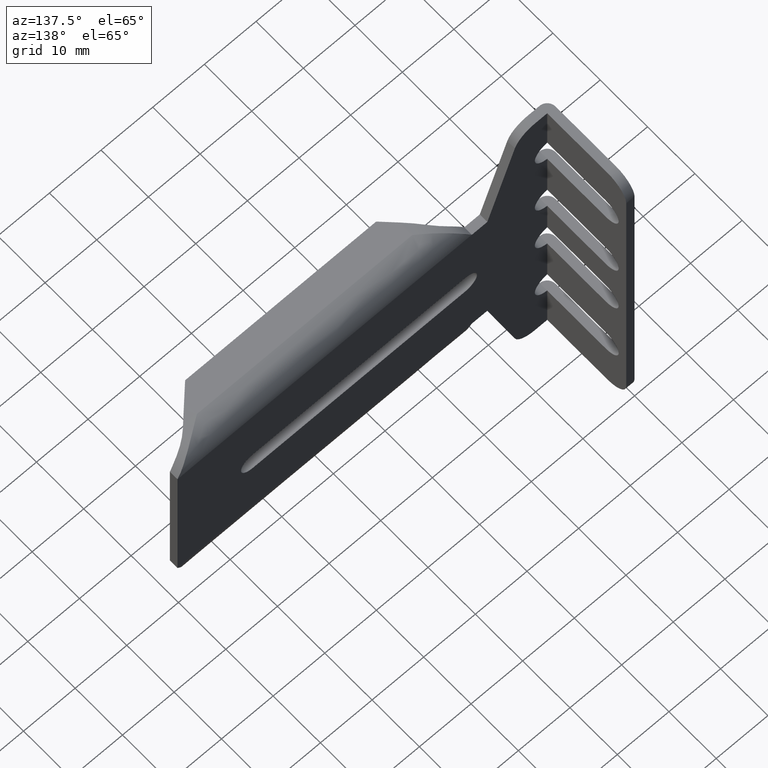
[diagram: clean part render]
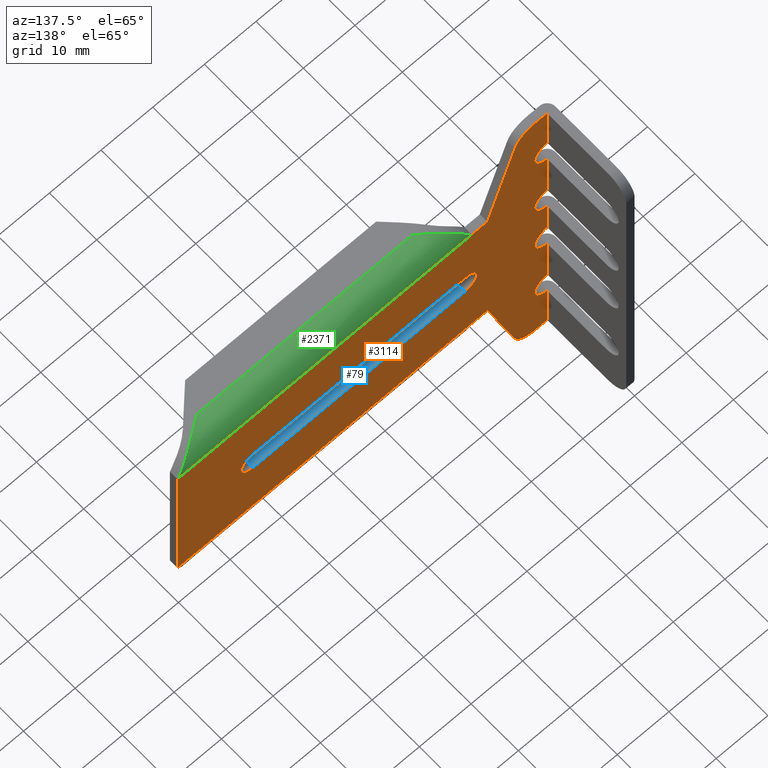
[diagram: same view with three faces highlighted in distinct colors, each labeled with its STEP entity id]
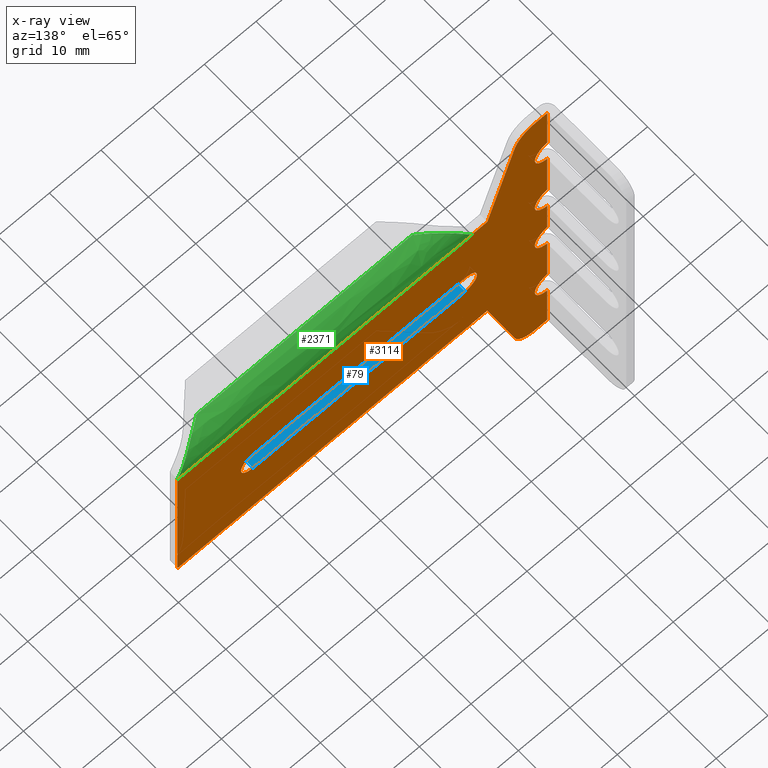
[diagram: x-ray of the same camera — body ghosted, the three highlighted faces saturated]
A machine part, auxiliary view with three faces highlighted in distinct colors.
The next image is the same camera in x-ray (body ghosted, the three faces saturated) — at least one of them is partly hidden behind the body in this view.
Their STEP definitions:

[orange] entity #3114 — the highlighted face is a freeform B-spline surface patch.
#58=CARTESIAN_POINT('',(58.600000000000001,-16.699999999999999,-2.300000000000000));
#59=VERTEX_POINT('',#58);
#65=CARTESIAN_POINT('',(17.500000000000000,-16.699999999999999,-2.300000000000000));
#66=VERTEX_POINT('',#65);
#67=CARTESIAN_POINT('',(17.500000000000000,-16.699999999999999,-2.300000000000000));
#68=CARTESIAN_POINT('',(58.600000000000001,-16.699999999999999,-2.300000000000000));
#69=QUASI_UNIFORM_CURVE('',1,(#67,#68),.UNSPECIFIED.,.F.,.U.);
#70=EDGE_CURVE('',#66,#59,#69,.T.);
#116=CARTESIAN_POINT('',(17.500000000000000,-16.699999999999999,2.300000000000000));
#117=VERTEX_POINT('',#116);
#118=CARTESIAN_POINT('',(17.500000000000000,-16.699999999999999,2.300000000000000));
#119=CARTESIAN_POINT('',(15.199999999999999,-16.699999999999996,2.300000000000000));
#120=CARTESIAN_POINT('',(15.199999999999999,-16.699999999999999,0.0));
#121=CARTESIAN_POINT('',(15.199999999999999,-16.699999999999996,-2.300000000000000));
#122=CARTESIAN_POINT('',(17.500000000000000,-16.699999999999999,-2.300000000000000));
#130=(BOUNDED_CURVE()B_SPLINE_CURVE(2,(#118,#119,#120,#121,#122),.UNSPECIFIED.,.F.,.U.)B_SPLINE_CURVE_WITH_KNOTS((3,2,3),(0.0,0.500000000000000,1.0),.UNSPECIFIED.)CURVE()GEOMETRIC_REPRESENTATION_ITEM()RATIONAL_B_SPLINE_CURVE((1.0,0.707106781186547,1.0,0.707106781186547,1.0))REPRESENTATION_ITEM(''));
#131=EDGE_CURVE('',#117,#66,#130,.T.);
#154=CARTESIAN_POINT('',(58.600000000000001,-16.699999999999999,2.300000000000000));
#155=VERTEX_POINT('',#154);
#156=CARTESIAN_POINT('',(58.600000000000001,-16.699999999999999,2.300000000000000));
#157=CARTESIAN_POINT('',(17.500000000000000,-16.699999999999999,2.300000000000000));
#158=QUASI_UNIFORM_CURVE('',1,(#156,#157),.UNSPECIFIED.,.F.,.U.);
#159=EDGE_CURVE('',#155,#117,#158,.T.);
#203=CARTESIAN_POINT('',(58.600000000000001,-16.699999999999999,-2.300000000000000));
#204=CARTESIAN_POINT('',(60.899999999999999,-16.699999999999996,-2.300000000000000));
#205=CARTESIAN_POINT('',(60.899999999999999,-16.699999999999999,0.0));
#206=CARTESIAN_POINT('',(60.899999999999999,-16.699999999999996,2.300000000000000));
#207=CARTESIAN_POINT('',(58.600000000000001,-16.699999999999999,2.300000000000000));
#215=(BOUNDED_CURVE()B_SPLINE_CURVE(2,(#203,#204,#205,#206,#207),.UNSPECIFIED.,.F.,.U.)B_SPLINE_CURVE_WITH_KNOTS((3,2,3),(0.0,0.500000000000000,1.0),.UNSPECIFIED.)CURVE()GEOMETRIC_REPRESENTATION_ITEM()RATIONAL_B_SPLINE_CURVE((1.0,0.707106781186547,1.0,0.707106781186547,1.0))REPRESENTATION_ITEM(''));
#216=EDGE_CURVE('',#59,#155,#215,.T.);
#259=CARTESIAN_POINT('',(1.600000000000000,-16.699999999999999,-19.522363660602849));
#260=VERTEX_POINT('',#259);
#266=CARTESIAN_POINT('',(1.600000000000000,-16.699999999999999,-24.977636339397151));
#267=VERTEX_POINT('',#266);
#268=CARTESIAN_POINT('',(1.600000000000001,-16.699999999999999,-24.977636339397161));
#269=CARTESIAN_POINT('',(3.999999999999900,-16.699999999999999,-24.669677397852244));
#270=CARTESIAN_POINT('',(3.999999999999900,-16.699999999999999,-22.250000000000000));
#271=CARTESIAN_POINT('',(3.999999999999900,-16.699999999999999,-19.830322602147753));
#272=CARTESIAN_POINT('',(1.600000000000002,-16.699999999999999,-19.522363660602839));
#280=(BOUNDED_CURVE()B_SPLINE_CURVE(2,(#268,#269,#270,#271,#272),.UNSPECIFIED.,.F.,.U.)B_SPLINE_CURVE_WITH_KNOTS((3,2,3),(0.0,0.500000000000000,1.0),.UNSPECIFIED.)CURVE()GEOMETRIC_REPRESENTATION_ITEM()RATIONAL_B_SPLINE_CURVE((1.0,0.750757193529561,1.0,0.750757193529561,1.0))REPRESENTATION_ITEM(''));
#281=EDGE_CURVE('',#267,#260,#280,.T.);
#327=CARTESIAN_POINT('',(1.600000000000000,-16.699999999999999,-19.500000000000000));
#328=VERTEX_POINT('',#327);
#366=CARTESIAN_POINT('',(1.600000000000000,-16.699999999999999,-25.0));
#367=VERTEX_POINT('',#366);
#485=CARTESIAN_POINT('',(1.600000000000000,-16.699999999999999,-3.622363660602835));
#486=VERTEX_POINT('',#485);
#492=CARTESIAN_POINT('',(1.600000000000000,-16.699999999999999,-9.077636339397149));
#493=VERTEX_POINT('',#492);
#494=CARTESIAN_POINT('',(1.600000000000001,-16.699999999999999,-9.077636339397158));
#495=CARTESIAN_POINT('',(3.999999999999900,-16.699999999999999,-8.769677397852240));
#496=CARTESIAN_POINT('',(3.999999999999900,-16.699999999999999,-6.350000000000000));
#497=CARTESIAN_POINT('',(3.999999999999900,-16.699999999999999,-3.930322602147758));
#498=CARTESIAN_POINT('',(1.599999999999999,-16.699999999999999,-3.622363660602841));
#506=(BOUNDED_CURVE()B_SPLINE_CURVE(2,(#494,#495,#496,#497,#498),.UNSPECIFIED.,.F.,.U.)B_SPLINE_CURVE_WITH_KNOTS((3,2,3),(0.0,0.500000000000000,1.0),.UNSPECIFIED.)CURVE()GEOMETRIC_REPRESENTATION_ITEM()RATIONAL_B_SPLINE_CURVE((1.0,0.750757193529561,1.0,0.750757193529561,1.0))REPRESENTATION_ITEM(''));
#507=EDGE_CURVE('',#493,#486,#506,.T.);
#553=CARTESIAN_POINT('',(1.600000000000000,-16.699999999999999,-3.600000000000000));
#554=VERTEX_POINT('',#553);
#592=CARTESIAN_POINT('',(1.600000000000000,-16.699999999999999,-9.100000000000000));
#593=VERTEX_POINT('',#592);
#711=CARTESIAN_POINT('',(1.600000000000000,-16.699999999999999,9.077636339397149));
#712=VERTEX_POINT('',#711);
#718=CARTESIAN_POINT('',(1.600000000000000,-16.699999999999999,3.622363660602835));
#719=VERTEX_POINT('',#718);
#720=CARTESIAN_POINT('',(1.599999999999998,-16.699999999999999,3.622363660602841));
#721=CARTESIAN_POINT('',(3.999999999999900,-16.700000000000006,3.930322602147759));
#722=CARTESIAN_POINT('',(3.999999999999900,-16.699999999999999,6.350000000000000));
#723=CARTESIAN_POINT('',(3.999999999999900,-16.700000000000006,8.769677397852240));
#724=CARTESIAN_POINT('',(1.600000000000002,-16.699999999999999,9.077636339397158));
#732=(BOUNDED_CURVE()B_SPLINE_CURVE(2,(#720,#721,#722,#723,#724),.UNSPECIFIED.,.F.,.U.)B_SPLINE_CURVE_WITH_KNOTS((3,2,3),(0.0,0.500000000000000,1.0),.UNSPECIFIED.)CURVE()GEOMETRIC_REPRESENTATION_ITEM()RATIONAL_B_SPLINE_CURVE((1.0,0.750757193529560,1.0,0.750757193529560,1.0))REPRESENTATION_ITEM(''));
#733=EDGE_CURVE('',#719,#712,#732,.T.);
#779=CARTESIAN_POINT('',(1.600000000000000,-16.699999999999999,9.100000000000000));
#780=VERTEX_POINT('',#779);
#818=CARTESIAN_POINT('',(1.600000000000000,-16.699999999999999,3.600000000000000));
#819=VERTEX_POINT('',#818);
#937=CARTESIAN_POINT('',(1.600000000000000,-16.699999999999999,24.977636339397151));
#938=VERTEX_POINT('',#937);
#944=CARTESIAN_POINT('',(1.600000000000000,-16.699999999999999,19.522363660602849));
#945=VERTEX_POINT('',#944);
#946=CARTESIAN_POINT('',(1.600000000000001,-16.699999999999999,19.522363660602839));
#947=CARTESIAN_POINT('',(3.999999999999900,-16.699999999999999,19.830322602147753));
#948=CARTESIAN_POINT('',(3.999999999999900,-16.699999999999999,22.250000000000000));
#949=CARTESIAN_POINT('',(3.999999999999900,-16.699999999999999,24.669677397852244));
#950=CARTESIAN_POINT('',(1.600000000000002,-16.699999999999999,24.977636339397161));
#958=(BOUNDED_CURVE()B_SPLINE_CURVE(2,(#946,#947,#948,#949,#950),.UNSPECIFIED.,.F.,.U.)B_SPLINE_CURVE_WITH_KNOTS((3,2,3),(0.0,0.500000000000000,1.0),.UNSPECIFIED.)CURVE()GEOMETRIC_REPRESENTATION_ITEM()RATIONAL_B_SPLINE_CURVE((1.0,0.750757193529561,1.0,0.750757193529561,1.0))REPRESENTATION_ITEM(''));
#959=EDGE_CURVE('',#945,#938,#958,.T.);
#1005=CARTESIAN_POINT('',(1.600000000000000,-16.699999999999999,25.0));
#1006=VERTEX_POINT('',#1005);
#1042=CARTESIAN_POINT('',(1.600000000000000,-16.699999999999999,19.500000000000000));
#1043=VERTEX_POINT('',#1042);
#1253=CARTESIAN_POINT('',(1.600000000000000,-16.699999999999999,-34.899999999999999));
#1254=VERTEX_POINT('',#1253);
#1255=CARTESIAN_POINT('',(1.600000000000000,-16.699999999999999,-34.899999999999999));
#1256=CARTESIAN_POINT('',(1.600000000000000,-16.699999999999999,-25.0));
#1257=QUASI_UNIFORM_CURVE('',1,(#1255,#1256),.UNSPECIFIED.,.F.,.U.);
#1258=EDGE_CURVE('',#1254,#367,#1257,.T.);
#1272=CARTESIAN_POINT('',(1.600000000000000,-16.699999999999999,34.899999999999999));
#1273=VERTEX_POINT('',#1272);
#1279=CARTESIAN_POINT('',(1.600000000000000,-16.699999999999999,25.0));
#1280=CARTESIAN_POINT('',(1.600000000000000,-16.699999999999999,34.899999999999999));
#1281=QUASI_UNIFORM_CURVE('',1,(#1279,#1280),.UNSPECIFIED.,.F.,.U.);
#1282=EDGE_CURVE('',#1006,#1273,#1281,.T.);
#1287=CARTESIAN_POINT('',(1.600000000000000,-16.699999999999999,9.100000000000000));
#1288=CARTESIAN_POINT('',(1.600000000000000,-16.699999999999999,19.500000000000000));
#1289=QUASI_UNIFORM_CURVE('',1,(#1287,#1288),.UNSPECIFIED.,.F.,.U.);
#1290=EDGE_CURVE('',#780,#1043,#1289,.T.);
#1295=CARTESIAN_POINT('',(1.600000000000000,-16.699999999999999,-3.600000000000000));
#1296=CARTESIAN_POINT('',(1.600000000000000,-16.699999999999999,3.600000000000000));
#1297=QUASI_UNIFORM_CURVE('',1,(#1295,#1296),.UNSPECIFIED.,.F.,.U.);
#1298=EDGE_CURVE('',#554,#819,#1297,.T.);
#1303=CARTESIAN_POINT('',(1.600000000000000,-16.699999999999999,-19.500000000000000));
#1304=CARTESIAN_POINT('',(1.600000000000000,-16.699999999999999,-9.100000000000000));
#1305=QUASI_UNIFORM_CURVE('',1,(#1303,#1304),.UNSPECIFIED.,.F.,.U.);
#1306=EDGE_CURVE('',#328,#593,#1305,.T.);
#1378=CARTESIAN_POINT('',(16.199999999999999,-16.699999999999999,15.0));
#1379=VERTEX_POINT('',#1378);
#1387=CARTESIAN_POINT('',(13.199999999999999,-16.699999999999999,15.0));
#1388=VERTEX_POINT('',#1387);
#1389=CARTESIAN_POINT('',(16.199999999999999,-16.699999999999999,15.0));
#1390=CARTESIAN_POINT('',(13.199999999999999,-16.699999999999999,15.0));
#1391=QUASI_UNIFORM_CURVE('',1,(#1389,#1390),.UNSPECIFIED.,.F.,.U.);
#1392=EDGE_CURVE('',#1379,#1388,#1391,.T.);
#1415=CARTESIAN_POINT('',(7.875532864427069,-16.699999999999999,32.089821435145403));
#1416=VERTEX_POINT('',#1415);
#1417=CARTESIAN_POINT('',(13.199999999999999,-16.699999999999999,15.0));
#1418=CARTESIAN_POINT('',(7.875532864427069,-16.699999999999999,32.089821435145403));
#1419=QUASI_UNIFORM_CURVE('',1,(#1417,#1418),.UNSPECIFIED.,.F.,.U.);
#1420=EDGE_CURVE('',#1388,#1416,#1419,.T.);
#1451=CARTESIAN_POINT('',(4.056589999999799,-16.699999999999999,34.899999999999999));
#1452=VERTEX_POINT('',#1451);
#1453=CARTESIAN_POINT('',(4.056589999999799,-16.699999999999999,34.899999999999999));
#1454=CARTESIAN_POINT('',(6.999999860558129,-16.699999999999996,34.899999999999999));
#1455=CARTESIAN_POINT('',(7.875532864427069,-16.699999999999999,32.089821435145403));
#1463=(BOUNDED_CURVE()B_SPLINE_CURVE(2,(#1453,#1454,#1455),.UNSPECIFIED.,.F.,.U.)CURVE()GEOMETRIC_REPRESENTATION_ITEM()QUASI_UNIFORM_CURVE()RATIONAL_B_SPLINE_CURVE((1.0,0.805436329589855,1.0))REPRESENTATION_ITEM(''));
#1464=EDGE_CURVE('',#1452,#1416,#1463,.T.);
#1509=CARTESIAN_POINT('',(1.600000000000000,-16.699999999999999,34.899999999999999));
#1510=CARTESIAN_POINT('',(4.056589999999799,-16.699999999999999,34.899999999999999));
#1511=QUASI_UNIFORM_CURVE('',1,(#1509,#1510),.UNSPECIFIED.,.F.,.U.);
#1512=EDGE_CURVE('',#1273,#1452,#1511,.T.);
#1577=CARTESIAN_POINT('',(4.056589999999799,-16.699999999999999,-34.899999999999999));
#1578=VERTEX_POINT('',#1577);
#1579=CARTESIAN_POINT('',(1.600000000000000,-16.699999999999999,-34.899999999999999));
#1580=CARTESIAN_POINT('',(4.056589999999799,-16.699999999999999,-34.899999999999999));
#1581=QUASI_UNIFORM_CURVE('',1,(#1579,#1580),.UNSPECIFIED.,.F.,.U.);
#1582=EDGE_CURVE('',#1254,#1578,#1581,.T.);
#1628=CARTESIAN_POINT('',(7.875533041854270,-16.699999999999999,-32.089821013040087));
#1629=VERTEX_POINT('',#1628);
#1630=CARTESIAN_POINT('',(7.875533041854219,-16.699999999999999,-32.089821013040073));
#1631=CARTESIAN_POINT('',(7.000000211842441,-16.699999999999996,-34.899999999999991));
#1632=CARTESIAN_POINT('',(4.056589999999799,-16.699999999999999,-34.899999999999999));
#1640=(BOUNDED_CURVE()B_SPLINE_CURVE(2,(#1630,#1631,#1632),.UNSPECIFIED.,.F.,.U.)CURVE()GEOMETRIC_REPRESENTATION_ITEM()QUASI_UNIFORM_CURVE()RATIONAL_B_SPLINE_CURVE((1.0,0.805436295823580,1.0))REPRESENTATION_ITEM(''));
#1641=EDGE_CURVE('',#1629,#1578,#1640,.T.);
#1673=CARTESIAN_POINT('',(13.199999999999999,-16.699999999999999,-15.0));
#1674=VERTEX_POINT('',#1673);
#1675=CARTESIAN_POINT('',(7.875533041854270,-16.699999999999999,-32.089821013040087));
#1676=CARTESIAN_POINT('',(13.199999999999999,-16.699999999999999,-15.0));
#1677=QUASI_UNIFORM_CURVE('',1,(#1675,#1676),.UNSPECIFIED.,.F.,.U.);
#1678=EDGE_CURVE('',#1629,#1674,#1677,.T.);
#1701=CARTESIAN_POINT('',(16.199999999999999,-16.699999999999999,-15.0));
#1702=VERTEX_POINT('',#1701);
#1703=CARTESIAN_POINT('',(13.199999999999999,-16.699999999999999,-15.0));
#1704=CARTESIAN_POINT('',(16.199999999999999,-16.699999999999999,-15.0));
#1705=QUASI_UNIFORM_CURVE('',1,(#1703,#1704),.UNSPECIFIED.,.F.,.U.);
#1706=EDGE_CURVE('',#1674,#1702,#1705,.T.);
#2275=CARTESIAN_POINT('',(73.200000000000003,-16.699999999999999,15.000000685119350));
#2276=VERTEX_POINT('',#2275);
#2277=CARTESIAN_POINT('',(16.199999999999999,-16.699999999999999,15.0));
#2278=CARTESIAN_POINT('',(73.200000000000003,-16.699999999999999,15.000000685119350));
#2279=QUASI_UNIFORM_CURVE('',1,(#2277,#2278),.UNSPECIFIED.,.F.,.U.);
#2280=EDGE_CURVE('',#1379,#2276,#2279,.T.);
#2434=CARTESIAN_POINT('',(73.200000000000003,-16.699999999999999,-15.000000685119350));
#2435=VERTEX_POINT('',#2434);
#2436=CARTESIAN_POINT('',(16.199999999999999,-16.699999999999999,-15.0));
#2437=CARTESIAN_POINT('',(73.200000000000003,-16.699999999999999,-15.000000685119350));
#2438=QUASI_UNIFORM_CURVE('',1,(#2436,#2437),.UNSPECIFIED.,.F.,.U.);
#2439=EDGE_CURVE('',#1702,#2435,#2438,.T.);
#2502=CARTESIAN_POINT('',(73.200000000000003,-16.699999999999999,-15.000000685119350));
#2503=CARTESIAN_POINT('',(73.200000000000003,-16.699999999999999,15.000000685119350));
#2504=QUASI_UNIFORM_CURVE('',1,(#2502,#2503),.UNSPECIFIED.,.F.,.U.);
#2505=EDGE_CURVE('',#2435,#2276,#2504,.T.);
#2843=CARTESIAN_POINT('',(1.600000000000000,-16.699999999999999,24.977636339397151));
#2844=CARTESIAN_POINT('',(1.600000000000000,-16.699999999999999,25.0));
#2845=QUASI_UNIFORM_CURVE('',1,(#2843,#2844),.UNSPECIFIED.,.F.,.U.);
#2846=EDGE_CURVE('',#938,#1006,#2845,.T.);
#2869=CARTESIAN_POINT('',(1.600000000000000,-16.699999999999999,19.500000000000000));
#2870=CARTESIAN_POINT('',(1.600000000000000,-16.699999999999999,19.522363660602849));
#2871=QUASI_UNIFORM_CURVE('',1,(#2869,#2870),.UNSPECIFIED.,.F.,.U.);
#2872=EDGE_CURVE('',#1043,#945,#2871,.T.);
#2908=CARTESIAN_POINT('',(1.600000000000000,-16.699999999999999,9.077636339397149));
#2909=CARTESIAN_POINT('',(1.600000000000000,-16.699999999999999,9.100000000000000));
#2910=QUASI_UNIFORM_CURVE('',1,(#2908,#2909),.UNSPECIFIED.,.F.,.U.);
#2911=EDGE_CURVE('',#712,#780,#2910,.T.);
#2934=CARTESIAN_POINT('',(1.600000000000000,-16.699999999999999,3.600000000000000));
#2935=CARTESIAN_POINT('',(1.600000000000000,-16.699999999999999,3.622363660602835));
#2936=QUASI_UNIFORM_CURVE('',1,(#2934,#2935),.UNSPECIFIED.,.F.,.U.);
#2937=EDGE_CURVE('',#819,#719,#2936,.T.);
#2973=CARTESIAN_POINT('',(1.600000000000000,-16.699999999999999,-3.622363660602835));
#2974=CARTESIAN_POINT('',(1.600000000000000,-16.699999999999999,-3.600000000000000));
#2975=QUASI_UNIFORM_CURVE('',1,(#2973,#2974),.UNSPECIFIED.,.F.,.U.);
#2976=EDGE_CURVE('',#486,#554,#2975,.T.);
#2999=CARTESIAN_POINT('',(1.600000000000000,-16.699999999999999,-9.100000000000000));
#3000=CARTESIAN_POINT('',(1.600000000000000,-16.699999999999999,-9.077636339397149));
#3001=QUASI_UNIFORM_CURVE('',1,(#2999,#3000),.UNSPECIFIED.,.F.,.U.);
#3002=EDGE_CURVE('',#593,#493,#3001,.T.);
#3038=CARTESIAN_POINT('',(1.600000000000000,-16.699999999999999,-19.522363660602849));
#3039=CARTESIAN_POINT('',(1.600000000000000,-16.699999999999999,-19.500000000000000));
#3040=QUASI_UNIFORM_CURVE('',1,(#3038,#3039),.UNSPECIFIED.,.F.,.U.);
#3041=EDGE_CURVE('',#260,#328,#3040,.T.);
#3064=CARTESIAN_POINT('',(1.600000000000000,-16.699999999999999,-25.0));
#3065=CARTESIAN_POINT('',(1.600000000000000,-16.699999999999999,-24.977636339397151));
#3066=QUASI_UNIFORM_CURVE('',1,(#3064,#3065),.UNSPECIFIED.,.F.,.U.);
#3067=EDGE_CURVE('',#367,#267,#3066,.T.);
#3073=CARTESIAN_POINT('',(-1.976419605419811,-16.699999999999999,-38.386511830411422));
#3074=CARTESIAN_POINT('',(-1.976419605419811,-16.699999999999999,38.386511830411422));
#3075=CARTESIAN_POINT('',(76.776416404650405,-16.699999999999999,-38.386511830411422));
#3076=CARTESIAN_POINT('',(76.776416404650405,-16.699999999999999,38.386511830411422));
#3077=B_SPLINE_SURFACE_WITH_KNOTS('',1,1,((#3073,#3075),(#3074,#3076)),.UNSPECIFIED.,.F.,.F.,.U.,(2,2),(2,2),(0.0,76.773023660822844),(0.0,78.752836010070212),.UNSPECIFIED.);
#3078=ORIENTED_EDGE('',*,*,#3067,.T.);
#3079=ORIENTED_EDGE('',*,*,#281,.T.);
#3080=ORIENTED_EDGE('',*,*,#3041,.T.);
#3081=ORIENTED_EDGE('',*,*,#1306,.T.);
#3082=ORIENTED_EDGE('',*,*,#3002,.T.);
#3083=ORIENTED_EDGE('',*,*,#507,.T.);
#3084=ORIENTED_EDGE('',*,*,#2976,.T.);
#3085=ORIENTED_EDGE('',*,*,#1298,.T.);
#3086=ORIENTED_EDGE('',*,*,#2937,.T.);
#3087=ORIENTED_EDGE('',*,*,#733,.T.);
#3088=ORIENTED_EDGE('',*,*,#2911,.T.);
#3089=ORIENTED_EDGE('',*,*,#1290,.T.);
#3090=ORIENTED_EDGE('',*,*,#2872,.T.);
#3091=ORIENTED_EDGE('',*,*,#959,.T.);
#3092=ORIENTED_EDGE('',*,*,#2846,.T.);
#3093=ORIENTED_EDGE('',*,*,#1282,.T.);
#3094=ORIENTED_EDGE('',*,*,#1512,.T.);
#3095=ORIENTED_EDGE('',*,*,#1464,.T.);
#3096=ORIENTED_EDGE('',*,*,#1420,.F.);
#3097=ORIENTED_EDGE('',*,*,#1392,.F.);
#3098=ORIENTED_EDGE('',*,*,#2280,.T.);
#3099=ORIENTED_EDGE('',*,*,#2505,.F.);
#3100=ORIENTED_EDGE('',*,*,#2439,.F.);
#3101=ORIENTED_EDGE('',*,*,#1706,.F.);
#3102=ORIENTED_EDGE('',*,*,#1678,.F.);
#3103=ORIENTED_EDGE('',*,*,#1641,.T.);
#3104=ORIENTED_EDGE('',*,*,#1582,.F.);
#3105=ORIENTED_EDGE('',*,*,#1258,.T.);
#3106=EDGE_LOOP('',(#3078,#3079,#3080,#3081,#3082,#3083,#3084,#3085,#3086,#3087,#3088,#3089,#3090,#3091,#3092,#3093,#3094,#3095,#3096,#3097,#3098,#3099,#3100,#3101,#3102,#3103,#3104,#3105));
#3107=FACE_OUTER_BOUND('',#3106,.T.);
#3108=ORIENTED_EDGE('',*,*,#216,.T.);
#3109=ORIENTED_EDGE('',*,*,#159,.T.);
#3110=ORIENTED_EDGE('',*,*,#131,.T.);
#3111=ORIENTED_EDGE('',*,*,#70,.T.);
#3112=EDGE_LOOP('',(#3108,#3109,#3110,#3111));
#3113=FACE_BOUND('',#3112,.T.);
#3114=ADVANCED_FACE('',(#3107,#3113),#3077,.T.);

[blue] entity #79 — the highlighted face is a freeform B-spline surface patch.
#44=CARTESIAN_POINT('',(60.652943377070663,-18.379919160842899,-2.300000000000000));
#45=CARTESIAN_POINT('',(15.447054050690900,-18.379919160842899,-2.300000000000000));
#46=CARTESIAN_POINT('',(60.652943377070663,-16.620080839157101,-2.300000000000000));
#47=CARTESIAN_POINT('',(15.447054050690900,-16.620080839157101,-2.300000000000000));
#48=B_SPLINE_SURFACE_WITH_KNOTS('',1,1,((#44,#46),(#45,#47)),.UNSPECIFIED.,.F.,.F.,.U.,(2,2),(2,2),(0.0,45.205889326379747),(0.041708770394325,0.958291229605675),.UNSPECIFIED.);
#49=CARTESIAN_POINT('',(17.500000000000000,-18.300000000000001,-2.300000000000000));
#50=VERTEX_POINT('',#49);
#51=CARTESIAN_POINT('',(58.600000000000001,-18.300000000000001,-2.300000000000000));
#52=VERTEX_POINT('',#51);
#53=CARTESIAN_POINT('',(17.500000000000000,-18.300000000000001,-2.300000000000000));
#54=CARTESIAN_POINT('',(58.600000000000001,-18.300000000000001,-2.300000000000000));
#55=QUASI_UNIFORM_CURVE('',1,(#53,#54),.UNSPECIFIED.,.F.,.U.);
#56=EDGE_CURVE('',#50,#52,#55,.T.);
#57=ORIENTED_EDGE('',*,*,#56,.T.);
#58=CARTESIAN_POINT('',(58.600000000000001,-16.699999999999999,-2.300000000000000));
#59=VERTEX_POINT('',#58);
#60=CARTESIAN_POINT('',(58.600000000000001,-16.699999999999999,-2.300000000000000));
#61=CARTESIAN_POINT('',(58.600000000000001,-18.300000000000001,-2.300000000000000));
#62=QUASI_UNIFORM_CURVE('',1,(#60,#61),.UNSPECIFIED.,.F.,.U.);
#63=EDGE_CURVE('',#59,#52,#62,.T.);
#64=ORIENTED_EDGE('',*,*,#63,.F.);
#65=CARTESIAN_POINT('',(17.500000000000000,-16.699999999999999,-2.300000000000000));
#66=VERTEX_POINT('',#65);
#67=CARTESIAN_POINT('',(17.500000000000000,-16.699999999999999,-2.300000000000000));
#68=CARTESIAN_POINT('',(58.600000000000001,-16.699999999999999,-2.300000000000000));
#69=QUASI_UNIFORM_CURVE('',1,(#67,#68),.UNSPECIFIED.,.F.,.U.);
#70=EDGE_CURVE('',#66,#59,#69,.T.);
#71=ORIENTED_EDGE('',*,*,#70,.F.);
#72=CARTESIAN_POINT('',(17.500000000000000,-16.699999999999999,-2.300000000000000));
#73=CARTESIAN_POINT('',(17.500000000000000,-18.300000000000001,-2.300000000000000));
#74=QUASI_UNIFORM_CURVE('',1,(#72,#73),.UNSPECIFIED.,.F.,.U.);
#75=EDGE_CURVE('',#66,#50,#74,.T.);
#76=ORIENTED_EDGE('',*,*,#75,.T.);
#77=EDGE_LOOP('',(#57,#64,#71,#76));
#78=FACE_OUTER_BOUND('',#77,.T.);
#79=ADVANCED_FACE('',(#78),#48,.F.);

[green] entity #2371 — the highlighted face is a freeform B-spline surface patch.
#1378=CARTESIAN_POINT('',(16.199999999999999,-16.699999999999999,15.0));
#1379=VERTEX_POINT('',#1378);
#2261=CARTESIAN_POINT('',(14.775000000000000,-21.061255128046469,19.248543590594231));
#2262=CARTESIAN_POINT('',(74.660625000000010,-21.061255128046469,19.248543590594231));
#2263=CARTESIAN_POINT('',(14.774999999999999,-16.381316180954890,19.371093789771248));
#2264=CARTESIAN_POINT('',(74.660625000000010,-16.381316180954890,19.371093789771248));
#2265=CARTESIAN_POINT('',(14.775000000000000,-16.710520850926049,14.701139680243807));
#2266=CARTESIAN_POINT('',(74.660625000000010,-16.710520850926049,14.701139680243807));
#2274=(BOUNDED_SURFACE()B_SPLINE_SURFACE(1,2,((#2261,#2263,#2265),(#2262,#2264,#2266)),.UNSPECIFIED.,.F.,.F.,.U.)B_SPLINE_SURFACE_WITH_KNOTS((2,2),(3,3),(0.0,59.885625000000019),(0.0,7.527357535161365),.UNSPECIFIED.)GEOMETRIC_REPRESENTATION_ITEM()RATIONAL_B_SPLINE_SURFACE(((1.0,0.670944229065258,0.996392636917718),(1.0,0.670944229065258,0.996392636917718)))REPRESENTATION_ITEM('')SURFACE());
#2275=CARTESIAN_POINT('',(73.200000000000003,-16.699999999999999,15.000000685119350));
#2276=VERTEX_POINT('',#2275);
#2277=CARTESIAN_POINT('',(16.199999999999999,-16.699999999999999,15.0));
#2278=CARTESIAN_POINT('',(73.200000000000003,-16.699999999999999,15.000000685119350));
#2279=QUASI_UNIFORM_CURVE('',1,(#2277,#2278),.UNSPECIFIED.,.F.,.U.);
#2280=EDGE_CURVE('',#1379,#2276,#2279,.T.);
#2281=ORIENTED_EDGE('',*,*,#2280,.F.);
#2282=CARTESIAN_POINT('',(23.844441999999901,-20.950001529117198,19.250000000000000));
#2283=VERTEX_POINT('',#2282);
#2284=CARTESIAN_POINT('',(16.199999999999999,-16.699999999999999,15.0));
#2285=CARTESIAN_POINT('',(16.314046095702501,-16.700000074231909,15.183541477547180));
#2286=CARTESIAN_POINT('',(16.433191768976361,-16.711812834867210,15.360581017954390));
#2287=CARTESIAN_POINT('',(16.681254664601799,-16.754970750047800,15.702835551625220));
#2288=CARTESIAN_POINT('',(16.810173295773989,-16.786339052672009,15.868044982096579));
#2289=CARTESIAN_POINT('',(17.077545465149761,-16.865920734328629,16.187379633369069));
#2290=CARTESIAN_POINT('',(17.215999633282291,-16.914146207031120,16.341501873144619));
#2291=CARTESIAN_POINT('',(17.430772700854511,-16.997721654580179,16.564705610006950));
#2292=CARTESIAN_POINT('',(17.503703667199758,-17.027525978606629,16.637925689630599));
#2293=CARTESIAN_POINT('',(17.651192577386411,-17.090392317499109,16.781019737420898));
#2294=CARTESIAN_POINT('',(17.725524774092339,-17.123351122264371,16.850687354252312));
#2295=CARTESIAN_POINT('',(18.100083369496470,-17.295098127654288,17.190164910267821));
#2296=CARTESIAN_POINT('',(18.408966587036840,-17.454441032687459,17.433658603211690));
#2297=CARTESIAN_POINT('',(18.885807838151159,-17.717880646602818,17.763273801882249));
#2298=CARTESIAN_POINT('',(19.047014801398952,-17.809824773404390,17.867155564383491));
#2299=CARTESIAN_POINT('',(19.292234580592599,-17.953276093753189,18.014438116513290));
#2300=CARTESIAN_POINT('',(19.374543146231009,-18.002017796104511,18.062106912270799));
#2301=CARTESIAN_POINT('',(19.540305856256790,-18.101261874225600,18.154645610512709));
#2302=CARTESIAN_POINT('',(19.623719267338121,-18.151741945999920,18.199485721411278));
#2303=CARTESIAN_POINT('',(20.040821629815952,-18.406580993344960,18.415393439047691));
#2304=CARTESIAN_POINT('',(20.376892447064058,-18.619508104564911,18.563050210122459));
#2305=CARTESIAN_POINT('',(21.054858951818868,-19.058735827679861,18.814398993238431));
#2306=CARTESIAN_POINT('',(21.396745637987600,-19.285076377919989,18.918039496999569));
#2307=CARTESIAN_POINT('',(21.914720986933069,-19.632435062990609,19.042480216768421));
#2308=CARTESIAN_POINT('',(22.088237855879392,-19.749539165430981,19.078768325781429));
#2309=CARTESIAN_POINT('',(22.437139905079071,-19.986101480192151,19.141057527638580));
#2310=CARTESIAN_POINT('',(22.612834367591280,-20.105772107992632,19.167087744266720));
#2311=CARTESIAN_POINT('',(22.964289812514760,-20.345875116088990,19.208607220211409));
#2312=CARTESIAN_POINT('',(23.140102780432681,-20.466341028024349,19.224128487746619));
#2313=CARTESIAN_POINT('',(23.404071878668439,-20.647473591155968,19.239652002104279));
#2314=CARTESIAN_POINT('',(23.536118804580191,-20.738148528444519,19.245472401409231));
#2315=CARTESIAN_POINT('',(23.690309427208149,-20.844086761345011,19.248868956194311));
#2316=CARTESIAN_POINT('',(23.756423139915459,-20.889517023610139,19.249596576490038));
#2317=CARTESIAN_POINT('',(23.800506388197689,-20.919809661527260,19.249919750826511));
#2318=CARTESIAN_POINT('',(23.822615558610138,-20.935002745421219,19.249999999999989));
#2319=CARTESIAN_POINT('',(23.844441999999901,-20.950001529117198,19.250000000000000));
#2320=B_SPLINE_CURVE_WITH_KNOTS('',3,(#2284,#2285,#2286,#2287,#2288,#2289,#2290,#2291,#2292,#2293,#2294,#2295,#2296,#2297,#2298,#2299,#2300,#2301,#2302,#2303,#2304,#2305,#2306,#2307,#2308,#2309,#2310,#2311,#2312,#2313,#2314,#2315,#2316,#2317,#2318,#2319),.UNSPECIFIED.,.F.,.U.,(4,2,2,2,2,2,2,2,2,2,2,2,2,2,2,1,1,2,4),(0.000000018996767,0.062500000000001,0.125000000000002,0.187500000000002,0.218750000000002,0.250000000000003,0.375000000000003,0.437500000000002,0.468750000000002,0.500000000000002,0.625000000000000,0.749999999999999,0.812499999999999,0.874999999999999,0.937499999999999,0.968749999999999,0.984374999999999,0.992187500000000,1.0),.UNSPECIFIED.);
#2321=EDGE_CURVE('',#1379,#2283,#2320,.T.);
#2322=ORIENTED_EDGE('',*,*,#2321,.T.);
#2323=CARTESIAN_POINT('',(65.555557999999905,-20.950001529117198,19.250000000000000));
#2324=VERTEX_POINT('',#2323);
#2325=CARTESIAN_POINT('',(23.844441999999901,-20.950001529117198,19.250000000000000));
#2326=CARTESIAN_POINT('',(65.555557999999905,-20.950001529117198,19.250000000000000));
#2327=QUASI_UNIFORM_CURVE('',1,(#2325,#2326),.UNSPECIFIED.,.F.,.U.);
#2328=EDGE_CURVE('',#2283,#2324,#2327,.T.);
#2329=ORIENTED_EDGE('',*,*,#2328,.T.);
#2330=CARTESIAN_POINT('',(65.555557999999905,-20.950001529117198,19.250000000000000));
#2331=CARTESIAN_POINT('',(65.577384440314091,-20.935002746161310,19.250000000000000));
#2332=CARTESIAN_POINT('',(65.599493609534591,-20.919809663085619,19.249919750834749));
#2333=CARTESIAN_POINT('',(65.643576855508158,-20.889517026754820,19.249596576531960));
#2334=CARTESIAN_POINT('',(65.709690564764898,-20.844086766860510,19.248868956312130));
#2335=CARTESIAN_POINT('',(65.863881179428006,-20.738148539430249,19.245472401879670));
#2336=CARTESIAN_POINT('',(65.995928098658879,-20.647473606722588,19.239652003171638));
#2337=CARTESIAN_POINT('',(66.259897183722728,-20.466341052602338,19.224128490386470));
#2338=CARTESIAN_POINT('',(66.435710143112303,-20.345875146474320,19.208607224403650));
#2339=CARTESIAN_POINT('',(66.787165571465778,-20.105772149555388,19.167087752515979));
#2340=CARTESIAN_POINT('',(66.962860022198186,-19.986101529674659,19.141057538912229));
#2341=CARTESIAN_POINT('',(67.311762048569420,-19.749539230041140,19.078768344549509));
#2342=CARTESIAN_POINT('',(67.485278906698056,-19.632435134657200,19.042480239889350));
#2343=CARTESIAN_POINT('',(68.003254224916674,-19.285076469187668,18.918039534803089));
#2344=CARTESIAN_POINT('',(68.345140892892843,-19.058735929933970,18.814399042985940));
#2345=CARTESIAN_POINT('',(69.023107365756502,-18.619508224181839,18.563050287341010));
#2346=CARTESIAN_POINT('',(69.359178169304400,-18.406581119346150,18.415393531796919));
#2347=CARTESIAN_POINT('',(69.776280517616343,-18.151742076569970,18.199485835535089));
#2348=CARTESIAN_POINT('',(69.859693926279135,-18.101262005384861,18.154645728840780));
#2349=CARTESIAN_POINT('',(70.025456626914433,-18.002017930963770,18.062107041987829));
#2350=CARTESIAN_POINT('',(70.107765188081657,-17.953276230214708,18.014438252054639));
#2351=CARTESIAN_POINT('',(70.352984954528580,-17.809824913908059,17.867155717769069));
#2352=CARTESIAN_POINT('',(70.514191910166431,-17.717880788784019,17.763273967658169));
#2353=CARTESIAN_POINT('',(70.991033141111345,-17.454441176607251,17.433658807525770));
#2354=CARTESIAN_POINT('',(71.299916348731003,-17.295098268406129,17.190165142082432));
#2355=CARTESIAN_POINT('',(71.674474936418790,-17.123351252116571,16.850687622519320));
#2356=CARTESIAN_POINT('',(71.748807131817344,-17.090392444819209,16.781020013083388));
#2357=CARTESIAN_POINT('',(71.896296039875722,-17.027526100094171,16.637925980294821));
#2358=CARTESIAN_POINT('',(71.969227003648413,-16.997721773493840,16.564705910014322));
#2359=CARTESIAN_POINT('',(72.184000066514855,-16.914146315998430,16.341502199309168));
#2360=CARTESIAN_POINT('',(72.322454233075646,-16.865920834751211,16.187379976845492));
#2361=CARTESIAN_POINT('',(72.589826402327972,-16.786339131928770,15.868045359613090));
#2362=CARTESIAN_POINT('',(72.718745034948526,-16.754970816686029,15.702835945871451));
#2363=CARTESIAN_POINT('',(72.966807974135648,-16.711812865194400,15.360581392671181));
#2364=CARTESIAN_POINT('',(73.085953555920099,-16.700000095625018,15.183542011714611));
#2365=CARTESIAN_POINT('',(73.200000000000003,-16.699999999999999,15.000000685119350));
#2366=B_SPLINE_CURVE_WITH_KNOTS('',3,(#2330,#2331,#2332,#2333,#2334,#2335,#2336,#2337,#2338,#2339,#2340,#2341,#2342,#2343,#2344,#2345,#2346,#2347,#2348,#2349,#2350,#2351,#2352,#2353,#2354,#2355,#2356,#2357,#2358,#2359,#2360,#2361,#2362,#2363,#2364,#2365),.UNSPECIFIED.,.F.,.U.,(4,2,1,1,2,2,2,2,2,2,2,2,2,2,2,2,2,2,4),(0.0,0.007812499999997,0.015624999999995,0.031249999999994,0.062499999999995,0.124999999999997,0.187499999999998,0.250000000000000,0.375000000000003,0.500000000000007,0.531250000000005,0.562500000000003,0.625000000000002,0.750000000000000,0.781250000000000,0.812500000000000,0.875000000000000,0.937500000000000,1.0),.UNSPECIFIED.);
#2367=EDGE_CURVE('',#2324,#2276,#2366,.T.);
#2368=ORIENTED_EDGE('',*,*,#2367,.T.);
#2369=EDGE_LOOP('',(#2281,#2322,#2329,#2368));
#2370=FACE_OUTER_BOUND('',#2369,.T.);
#2371=ADVANCED_FACE('',(#2370),#2274,.T.);